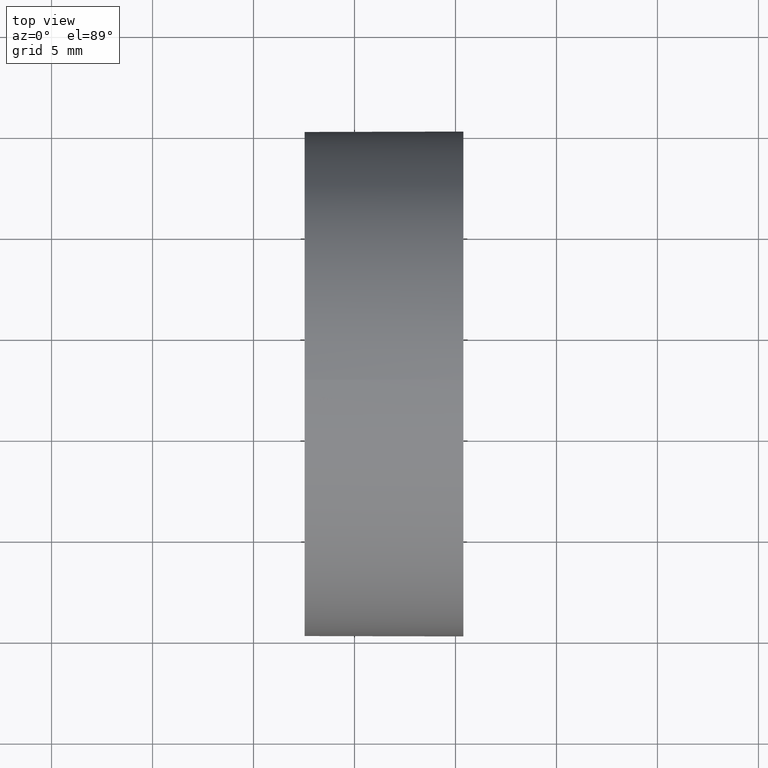
[diagram: clean part render]
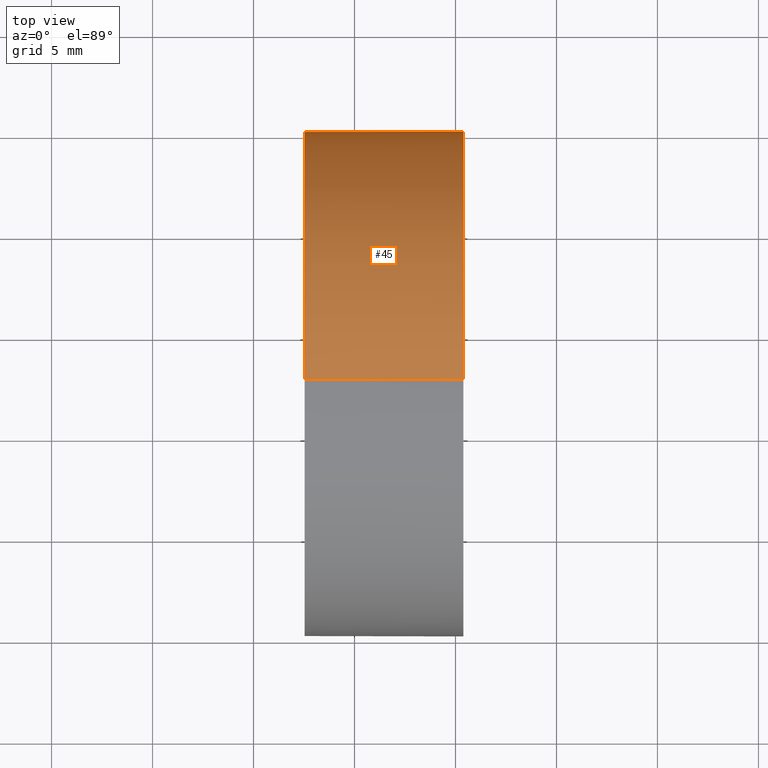
[diagram: same view with one face highlighted and labeled with its STEP entity id]
A machine part, top view. The second image highlights one B-rep face of the part: STEP entity #45.
In plain terms, the highlighted cylindrical surface (partial cylindrical patch) has radius 12.5 mm, axis along (-1, -0, -0).
Its self-contained STEP definition (entity closure, byte-faithful):
#1 = CARTESIAN_POINT ( 'NONE',  ( 57.53233705252611700, 32.61076812922678400, -12.49999999999999600 ) ) ;
#2 = ORIENTED_EDGE ( 'NONE', *, *, #80, .T. ) ;
#7 = CARTESIAN_POINT ( 'NONE',  ( 57.53233705252611700, 32.61076812922678400, 0.0000000000000000000 ) ) ;
#11 = VERTEX_POINT ( 'NONE', #18 ) ;
#14 = VECTOR ( 'NONE', #140, 1000.000000000000000 ) ;
#15 = EDGE_LOOP ( 'NONE', ( #82, #99, #127, #69, #2 ) ) ;
#17 = CARTESIAN_POINT ( 'NONE',  ( 65.38778473377520600, 32.61076812922678400, 0.0000000000000000000 ) ) ;
#18 = CARTESIAN_POINT ( 'NONE',  ( 65.38778473377520600, 45.11076812922679100, 1.530808498934191500E-015 ) ) ;
#19 = VERTEX_POINT ( 'NONE', #1 ) ;
#25 = CARTESIAN_POINT ( 'NONE',  ( 56.10091507999716500, 32.61076812922678400, 12.49999999999999600 ) ) ;
#27 = DIRECTION ( 'NONE',  ( -1.000000000000000000, -0.0000000000000000000, -0.0000000000000000000 ) ) ;
#29 = CYLINDRICAL_SURFACE ( 'NONE', #44, 12.49999999999999600 ) ;
#31 = DIRECTION ( 'NONE',  ( -1.000000000000000000, -0.0000000000000000000, -0.0000000000000000000 ) ) ;
#33 = CARTESIAN_POINT ( 'NONE',  ( 65.38778473377520600, 32.61076812922678400, 0.0000000000000000000 ) ) ;
#34 = LINE ( 'NONE', #25, #14 ) ;
#39 = CIRCLE ( 'NONE', #103, 12.49999999999999600 ) ;
#44 = AXIS2_PLACEMENT_3D ( 'NONE', #70, #172, #104 ) ;
#45 = ADVANCED_FACE ( 'NONE', ( #147 ), #29, .T. ) ;
#51 = VERTEX_POINT ( 'NONE', #132 ) ;
#52 = EDGE_CURVE ( 'NONE', #11, #51, #39, .T. ) ;
#55 = AXIS2_PLACEMENT_3D ( 'NONE', #33, #123, #160 ) ;
#62 = DIRECTION ( 'NONE',  ( 0.0000000000000000000, 0.0000000000000000000, 1.000000000000000000 ) ) ;
#64 = EDGE_CURVE ( 'NONE', #51, #19, #156, .T. ) ;
#69 = ORIENTED_EDGE ( 'NONE', *, *, #173, .F. ) ;
#70 = CARTESIAN_POINT ( 'NONE',  ( 56.10091507999716500, 32.61076812922678400, 0.0000000000000000000 ) ) ;
#80 = EDGE_CURVE ( 'NONE', #181, #11, #101, .T. ) ;
#82 = ORIENTED_EDGE ( 'NONE', *, *, #52, .T. ) ;
#90 = VERTEX_POINT ( 'NONE', #108 ) ;
#99 = ORIENTED_EDGE ( 'NONE', *, *, #64, .T. ) ;
#101 = CIRCLE ( 'NONE', #55, 12.49999999999999600 ) ;
#103 = AXIS2_PLACEMENT_3D ( 'NONE', #17, #130, #148 ) ;
#104 = DIRECTION ( 'NONE',  ( 0.0000000000000000000, 0.0000000000000000000, 1.000000000000000000 ) ) ;
#105 = AXIS2_PLACEMENT_3D ( 'NONE', #7, #27, #62 ) ;
#108 = CARTESIAN_POINT ( 'NONE',  ( 57.53233705252611700, 32.61076812922678400, 12.49999999999999600 ) ) ;
#111 = CARTESIAN_POINT ( 'NONE',  ( 65.38778473377520600, 32.61076812922678400, 12.49999999999999600 ) ) ;
#121 = CARTESIAN_POINT ( 'NONE',  ( 56.10091507999716500, 32.61076812922678400, -12.49999999999999600 ) ) ;
#123 = DIRECTION ( 'NONE',  ( -1.000000000000000000, -0.0000000000000000000, -0.0000000000000000000 ) ) ;
#127 = ORIENTED_EDGE ( 'NONE', *, *, #142, .F. ) ;
#130 = DIRECTION ( 'NONE',  ( -1.000000000000000000, -0.0000000000000000000, -0.0000000000000000000 ) ) ;
#132 = CARTESIAN_POINT ( 'NONE',  ( 65.38778473377520600, 32.61076812922678400, -12.49999999999999600 ) ) ;
#140 = DIRECTION ( 'NONE',  ( -1.000000000000000000, -0.0000000000000000000, -0.0000000000000000000 ) ) ;
#142 = EDGE_CURVE ( 'NONE', #90, #19, #150, .T. ) ;
#147 = FACE_OUTER_BOUND ( 'NONE', #15, .T. ) ;
#148 = DIRECTION ( 'NONE',  ( 0.0000000000000000000, 0.0000000000000000000, 1.000000000000000000 ) ) ;
#150 = CIRCLE ( 'NONE', #105, 12.49999999999999600 ) ;
#153 = VECTOR ( 'NONE', #31, 1000.000000000000000 ) ;
#156 = LINE ( 'NONE', #121, #153 ) ;
#160 = DIRECTION ( 'NONE',  ( 0.0000000000000000000, 0.0000000000000000000, 1.000000000000000000 ) ) ;
#172 = DIRECTION ( 'NONE',  ( -1.000000000000000000, -0.0000000000000000000, -0.0000000000000000000 ) ) ;
#173 = EDGE_CURVE ( 'NONE', #181, #90, #34, .T. ) ;
#181 = VERTEX_POINT ( 'NONE', #111 ) ;